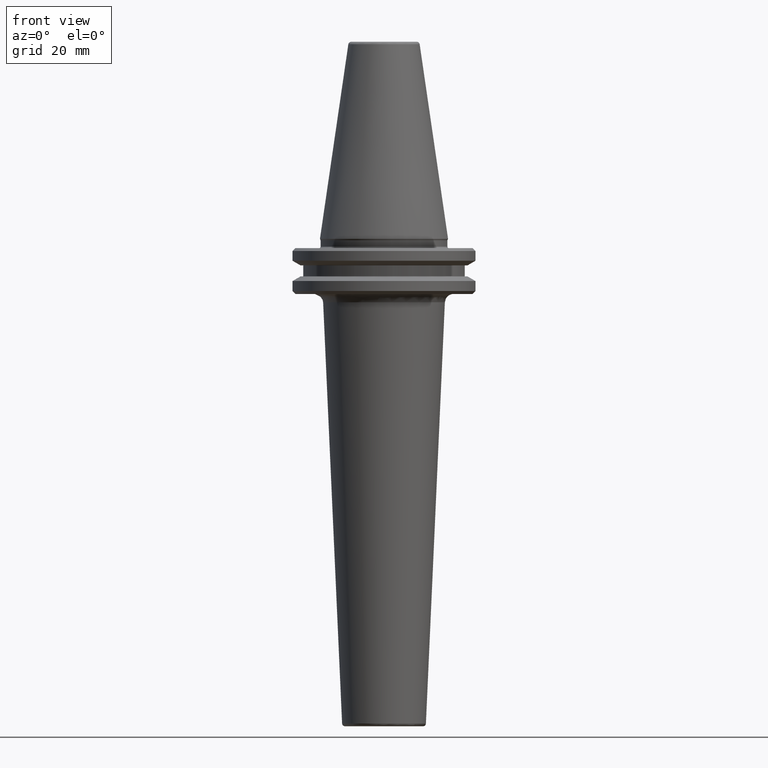
[diagram: clean part render]
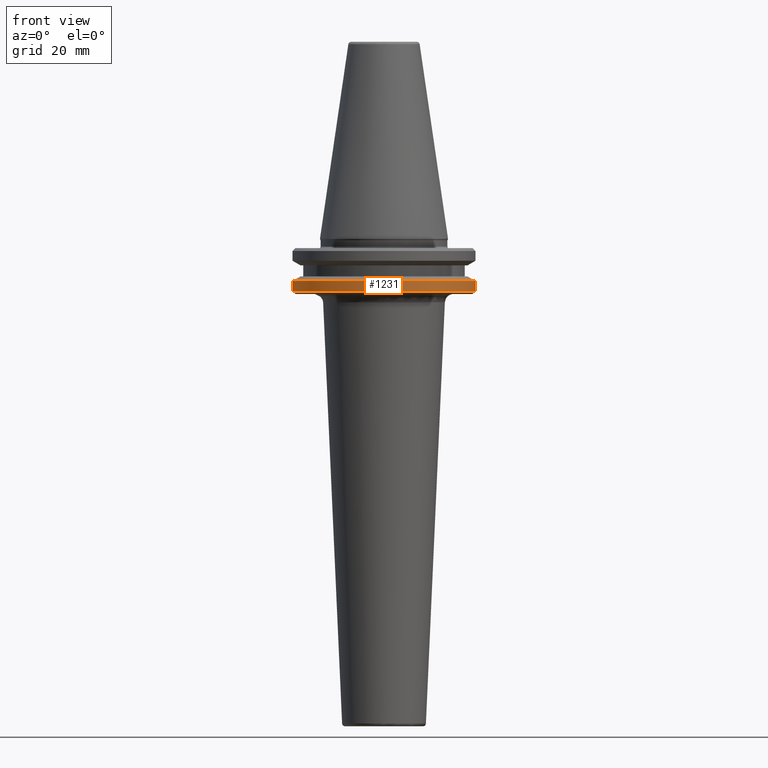
[diagram: same view with one face highlighted and labeled with its STEP entity id]
A machine part, front view. The second image highlights one B-rep face of the part: STEP entity #1231.
In plain terms, the highlighted cylindrical surface (partial cylindrical patch) has radius 31.75 mm, axis along (0, 0, 1).
Its self-contained STEP definition (entity closure, byte-faithful):
#44 = DIRECTION ( 'NONE',  ( 1.000000000000000000, 0.0000000000000000000, 0.0000000000000000000 ) ) ;
#51 = DIRECTION ( 'NONE',  ( -0.0000000000000000000, -0.0000000000000000000, 1.000000000000000000 ) ) ;
#55 = CARTESIAN_POINT ( 'NONE',  ( 0.0000000000000000000, 0.0000000000000000000, -18.10000000000055900 ) ) ;
#59 = FACE_OUTER_BOUND ( 'NONE', #866, .T. ) ;
#105 = EDGE_CURVE ( 'NONE', #475, #917, #490, .T. ) ;
#142 = VERTEX_POINT ( 'NONE', #592 ) ;
#145 = DIRECTION ( 'NONE',  ( 0.0000000000000000000, 0.0000000000000000000, 1.000000000000000000 ) ) ;
#250 = EDGE_CURVE ( 'NONE', #1054, #475, #317, .T. ) ;
#277 = VECTOR ( 'NONE', #145, 1000.000000000000000 ) ;
#317 = LINE ( 'NONE', #370, #277 ) ;
#353 = DIRECTION ( 'NONE',  ( -0.0000000000000000000, -0.0000000000000000000, 1.000000000000000000 ) ) ;
#369 = CARTESIAN_POINT ( 'NONE',  ( -31.74999999999947400, 3.888253587292782600E-015, -18.10000000000055900 ) ) ;
#370 = CARTESIAN_POINT ( 'NONE',  ( -31.75000000000000000, 3.888253587292846500E-015, 113.5216080541959500 ) ) ;
#414 = AXIS2_PLACEMENT_3D ( 'NONE', #473, #796, #1234 ) ;
#465 = ORIENTED_EDGE ( 'NONE', *, *, #105, .F. ) ;
#473 = CARTESIAN_POINT ( 'NONE',  ( 0.0000000000000000000, 0.0000000000000000000, 113.5216080541959500 ) ) ;
#475 = VERTEX_POINT ( 'NONE', #1042 ) ;
#490 = CIRCLE ( 'NONE', #706, 31.75000000000000000 ) ;
#592 = CARTESIAN_POINT ( 'NONE',  ( 31.74999999999947400, 0.0000000000000000000, -18.10000000000055900 ) ) ;
#621 = CARTESIAN_POINT ( 'NONE',  ( 0.0000000000000000000, 0.0000000000000000000, -14.62183664205671200 ) ) ;
#624 = EDGE_CURVE ( 'NONE', #142, #917, #690, .T. ) ;
#633 = CARTESIAN_POINT ( 'NONE',  ( 31.75000000000000000, 3.888253587292846500E-015, -14.62183664205671200 ) ) ;
#674 = ORIENTED_EDGE ( 'NONE', *, *, #624, .T. ) ;
#690 = LINE ( 'NONE', #1107, #726 ) ;
#706 = AXIS2_PLACEMENT_3D ( 'NONE', #621, #353, #997 ) ;
#714 = ORIENTED_EDGE ( 'NONE', *, *, #1436, .T. ) ;
#726 = VECTOR ( 'NONE', #1100, 1000.000000000000000 ) ;
#796 = DIRECTION ( 'NONE',  ( 0.0000000000000000000, 0.0000000000000000000, 1.000000000000000000 ) ) ;
#866 = EDGE_LOOP ( 'NONE', ( #1242, #714, #674, #465 ) ) ;
#872 = AXIS2_PLACEMENT_3D ( 'NONE', #55, #51, #44 ) ;
#917 = VERTEX_POINT ( 'NONE', #633 ) ;
#997 = DIRECTION ( 'NONE',  ( -1.000000000000000000, 0.0000000000000000000, -5.463695987328526400E-017 ) ) ;
#1042 = CARTESIAN_POINT ( 'NONE',  ( -31.75000000000000000, 0.0000000000000000000, -14.62183664205671200 ) ) ;
#1054 = VERTEX_POINT ( 'NONE', #369 ) ;
#1100 = DIRECTION ( 'NONE',  ( 0.0000000000000000000, 0.0000000000000000000, 1.000000000000000000 ) ) ;
#1107 = CARTESIAN_POINT ( 'NONE',  ( 31.75000000000000000, 0.0000000000000000000, 113.5216080541959500 ) ) ;
#1231 = ADVANCED_FACE ( 'NONE', ( #59 ), #1372, .T. ) ;
#1234 = DIRECTION ( 'NONE',  ( 1.000000000000000000, 0.0000000000000000000, 0.0000000000000000000 ) ) ;
#1242 = ORIENTED_EDGE ( 'NONE', *, *, #250, .F. ) ;
#1372 = CYLINDRICAL_SURFACE ( 'NONE', #414, 31.75000000000000000 ) ;
#1436 = EDGE_CURVE ( 'NONE', #1054, #142, #1570, .T. ) ;
#1570 = CIRCLE ( 'NONE', #872, 31.75000000000005700 ) ;